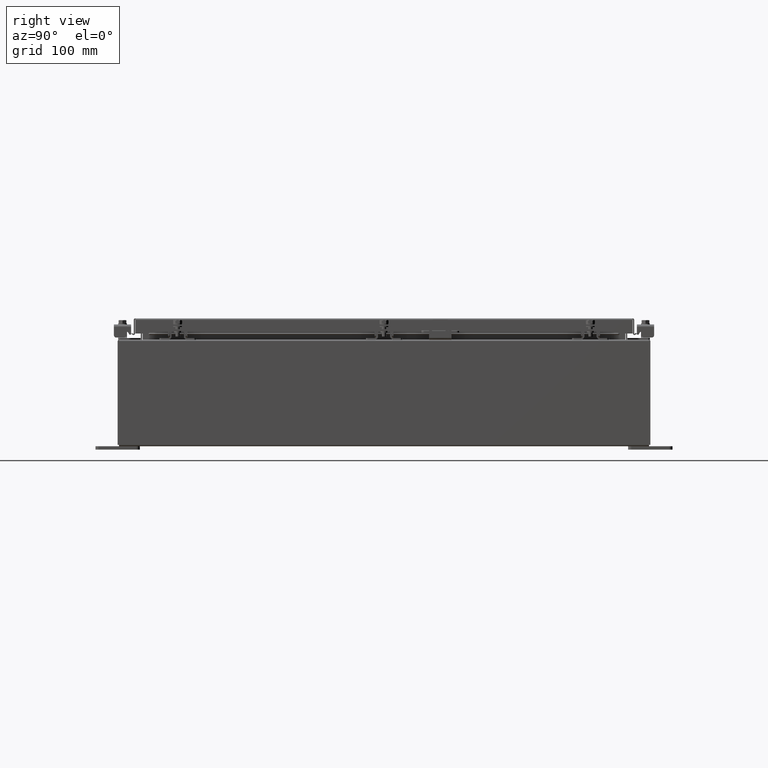
[diagram: clean part render]
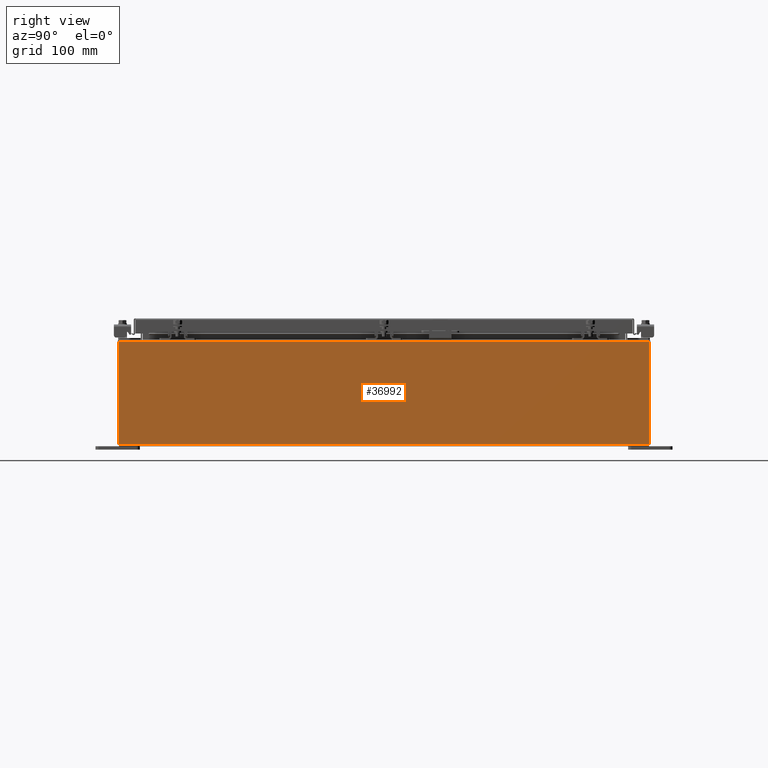
[diagram: same view with one face highlighted and labeled with its STEP entity id]
A machine part, right view. The second image highlights one B-rep face of the part: STEP entity #36992.
In plain terms, the highlighted planar face has unit normal (-1, 0, 0).
Its self-contained STEP definition (entity closure, byte-faithful):
#334 = EDGE_CURVE ( 'NONE', #17136, #22494, #26454, .T. ) ;
#805 = DIRECTION ( 'NONE',  ( 2.430368545829587400E-031, -1.000000000000000000, 7.321388497823866900E-017 ) ) ;
#1340 = FACE_OUTER_BOUND ( 'NONE', #37071, .T. ) ;
#1715 = CARTESIAN_POINT ( 'NONE',  ( 12.00000000000001600, -14.92530000000000200, 5.837600000000001000 ) ) ;
#1877 = VECTOR ( 'NONE', #805, 39.37007874015748100 ) ;
#2782 = DIRECTION ( 'NONE',  ( 3.319545939341922000E-015, 0.0000000000000000000, 1.000000000000000000 ) ) ;
#3340 = ORIENTED_EDGE ( 'NONE', *, *, #334, .T. ) ;
#3365 = CARTESIAN_POINT ( 'NONE',  ( 11.99999999999999600, 14.92530000000000000, -4.009536492811462900E-014 ) ) ;
#4154 = EDGE_CURVE ( 'NONE', #17136, #5590, #17441, .T. ) ;
#5590 = VERTEX_POINT ( 'NONE', #31378 ) ;
#5641 = CARTESIAN_POINT ( 'NONE',  ( 11.99999999999999600, 14.92530000000000000, 0.01299999999999767800 ) ) ;
#5688 = VECTOR ( 'NONE', #19893, 39.37007874015748100 ) ;
#5916 = LINE ( 'NONE', #14131, #20549 ) ;
#6653 = CARTESIAN_POINT ( 'NONE',  ( 11.99999999999999600, -14.92530000000000000, 0.01299999999999986400 ) ) ;
#8113 = CARTESIAN_POINT ( 'NONE',  ( 11.99999999999999600, -14.92530000000000000, -4.009536492811462900E-014 ) ) ;
#12181 = DIRECTION ( 'NONE',  ( 3.319545939341922800E-015, 0.0000000000000000000, 1.000000000000000000 ) ) ;
#13842 = ORIENTED_EDGE ( 'NONE', *, *, #35283, .T. ) ;
#14131 = CARTESIAN_POINT ( 'NONE',  ( 12.00000000000001600, 14.92530000000000200, 5.837600000000001000 ) ) ;
#14401 = PLANE ( 'NONE',  #16936 ) ;
#16936 = AXIS2_PLACEMENT_3D ( 'NONE', #17370, #20281, #2782 ) ;
#17136 = VERTEX_POINT ( 'NONE', #5641 ) ;
#17370 = CARTESIAN_POINT ( 'NONE',  ( 11.99999999999999600, 0.0000000000000000000, -4.009536492811462900E-014 ) ) ;
#17441 = LINE ( 'NONE', #6653, #1877 ) ;
#18025 = CARTESIAN_POINT ( 'NONE',  ( 12.00000000000001600, 14.92530000000000200, 5.837600000000001000 ) ) ;
#19893 = DIRECTION ( 'NONE',  ( -3.319545939341922800E-015, 0.0000000000000000000, -1.000000000000000000 ) ) ;
#20281 = DIRECTION ( 'NONE',  ( -1.000000000000000000, 0.0000000000000000000, 3.319545939341922000E-015 ) ) ;
#20549 = VECTOR ( 'NONE', #34658, 39.37007874015748100 ) ;
#21259 = LINE ( 'NONE', #8113, #5688 ) ;
#22494 = VERTEX_POINT ( 'NONE', #18025 ) ;
#23773 = ORIENTED_EDGE ( 'NONE', *, *, #32353, .T. ) ;
#26454 = LINE ( 'NONE', #3365, #33366 ) ;
#31378 = CARTESIAN_POINT ( 'NONE',  ( 11.99999999999999600, -14.92530000000000000, 0.01299999999999998900 ) ) ;
#32353 = EDGE_CURVE ( 'NONE', #22494, #32853, #5916, .T. ) ;
#32853 = VERTEX_POINT ( 'NONE', #1715 ) ;
#32942 = ORIENTED_EDGE ( 'NONE', *, *, #4154, .F. ) ;
#33366 = VECTOR ( 'NONE', #12181, 39.37007874015748100 ) ;
#34658 = DIRECTION ( 'NONE',  ( -0.0000000000000000000, -1.000000000000000000, -0.0000000000000000000 ) ) ;
#35283 = EDGE_CURVE ( 'NONE', #32853, #5590, #21259, .T. ) ;
#36992 = ADVANCED_FACE ( 'NONE', ( #1340 ), #14401, .F. ) ;
#37071 = EDGE_LOOP ( 'NONE', ( #23773, #13842, #32942, #3340 ) ) ;